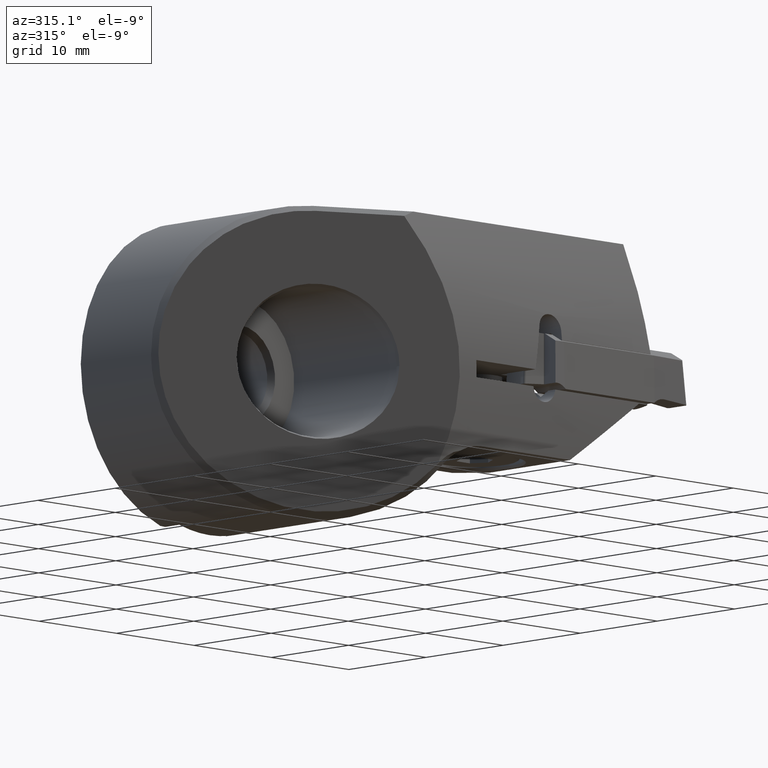
[diagram: clean part render]
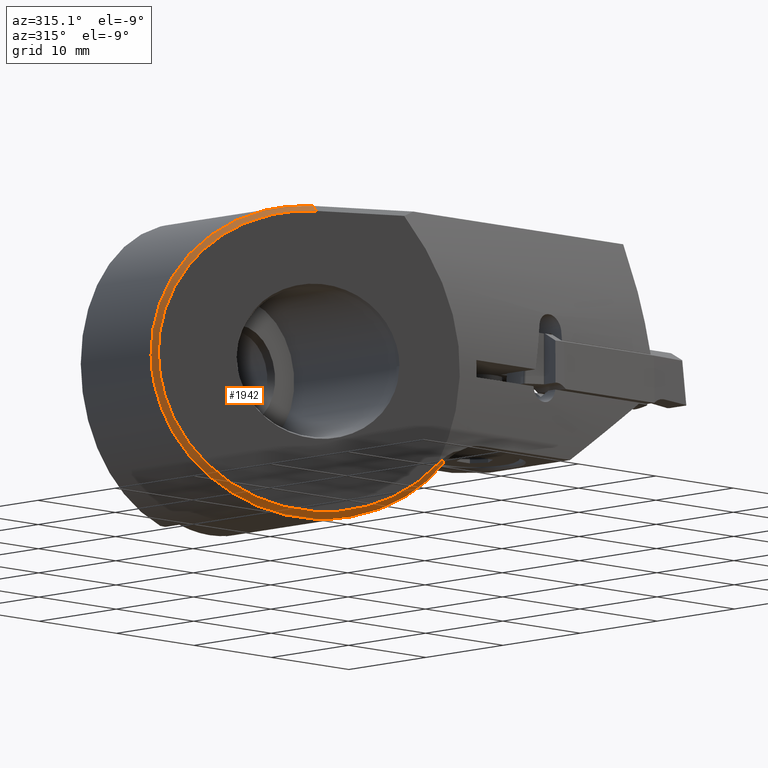
[diagram: same view with one face highlighted and labeled with its STEP entity id]
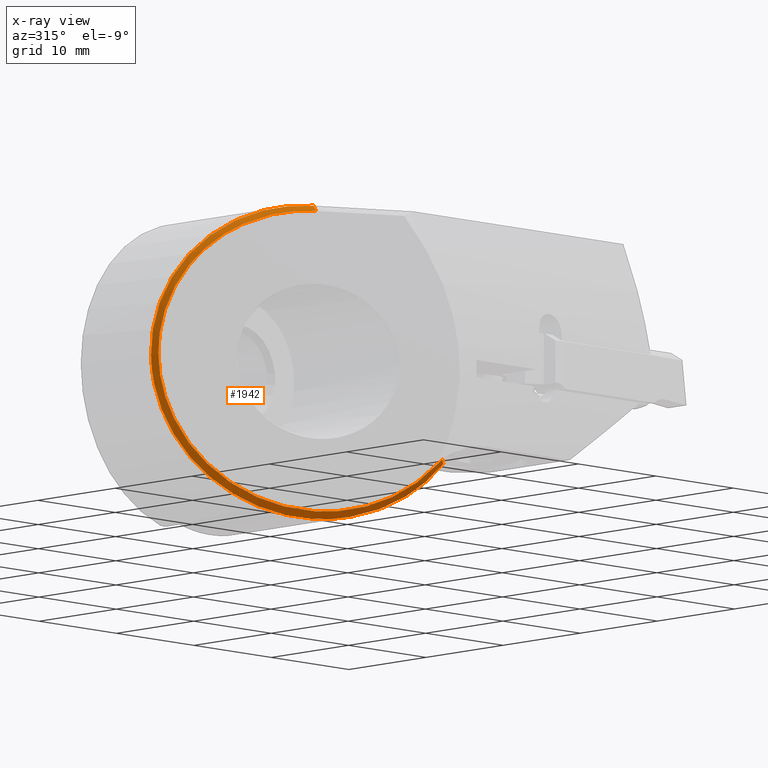
[diagram: x-ray of the same camera — body ghosted, the highlighted face saturated]
A machine part, auxiliary view. The second image highlights one B-rep face of the part: STEP entity #1942.
The next image is the same camera in x-ray: the body ghosted, the highlighted face saturated — about 0% of this face is hidden behind the body in this view.
In plain terms, the highlighted face is a freeform B-spline surface patch.
Its self-contained STEP definition (entity closure, byte-faithful):
#872=EDGE_CURVE('Kante135',#2162,#1180,#2355,.F.);
#874=EDGE_CURVE('NONE',#1072,#2162,#2357,.T.);
#1072=VERTEX_POINT('NONE',#2576);
#1180=VERTEX_POINT('NONE',#2695);
#1270=EDGE_CURVE('NONE',#1180,#1870,#2790,.T.);
#1566=VERTEX_POINT('',#3114);
#1568=EDGE_CURVE('NONE',#1604,#2028,#3116,.T.);
#1604=VERTEX_POINT('NONE',#3154);
#1870=VERTEX_POINT('NONE',#3447);
#1942=ADVANCED_FACE('NONE',(#3523),#3524,.T.);
#1946=EDGE_CURVE('NONE',#2028,#1566,#3528,.T.);
#2028=VERTEX_POINT('NONE',#3623);
#2108=EDGE_CURVE('NONE',#1604,#1870,#3711,.T.);
#2162=VERTEX_POINT('NONE',#3771);
#2190=EDGE_CURVE('NONE',#1566,#1072,#3801,.T.);
#2355=B_SPLINE_CURVE_WITH_KNOTS('',3,(#4066,#4067,#4068,#4069,#4070,#4071,#4072,#4073,#4074,#4075,#4076,#4077,#4078,#4079,#4080,#4081,#4082,#4083,#4084,#4085,#4086,#4087,#4088,#4089,#4090,#4091,#4092,#4093),.UNSPECIFIED.,.F.,.F.,(4,2,2,2,2,2,2,2,2,2,2,2,2,4),(-116.030400022499,-110.917216512603,-106.274779054729,-96.7883374040652,-82.3474308451043,-69.2807316693358,-56.3449539127448,-46.5530486270223,-38.9457003623519,-29.9039560426425,-19.7350639219626,-10.8274703385523,-2.49017190615868,-0.0),.UNSPECIFIED.);
#2357=B_SPLINE_CURVE_WITH_KNOTS('',1,(#4096,#4097),.UNSPECIFIED.,.F.,.F.,(2,2),(1.26287869051112E-015,1.0),.UNSPECIFIED.);
#2576=CARTESIAN_POINT('',(0.0,-15.6030548013484,14.5));
#2695=CARTESIAN_POINT('',(10.3681195455965,-21.275833966564,-8.91898884692533));
#2790=B_SPLINE_CURVE_WITH_KNOTS('',3,(#4889,#4890,#4891,#4892),.UNSPECIFIED.,.F.,.F.,(4,4),(-2.17256673236491,-0.0),.UNSPECIFIED.);
#3114=CARTESIAN_POINT('',(2.0220364360623E-012,-15.604408145536,-14.5));
#3116=B_SPLINE_CURVE_WITH_KNOTS('',3,(#5547,#5548,#5549,#5550,#5551,#5552,#5553,#5554,#5555,#5556,#5557,#5558,#5559,#5560,#5561,#5562,#5563,#5564),.UNSPECIFIED.,.F.,.F.,(4,2,2,2,2,2,2,2,4),(-16.8226115330703,-16.3657095577305,-16.1414881846463,-15.2805474976638,-13.0962285014808,-12.1639126649888,-5.76052745261957,-2.31666714743119,-0.0),.UNSPECIFIED.);
#3154=CARTESIAN_POINT('',(11.6,-20.7966242975052,-8.7));
#3447=CARTESIAN_POINT('',(10.9362458107321,-21.3800676624774,-8.40605878675312));
#3523=FACE_OUTER_BOUND('',#6223,.T.);
#3524=B_SPLINE_SURFACE_WITH_KNOTS('',1,3,((#6224,#6225,#6226,#6227,#6228,#6229,#6230,#6231,#6232,#6233,#6234,#6235,#6236,#6237,#6238,#6239,#6240,#6241,#6242,#6243,#6244,#6245,#6246,#6247),(#6248,#6249,#6250,#6251,#6252,#6253,#6254,#6255,#6256,#6257,#6258,#6259,#6260,#6261,#6262,#6263,#6264,#6265,#6266,#6267,#6268,#6269,#6270,#6271),(#6272,#6273,#6274,#6275,#6276,#6277,#6278,#6279,#6280,#6281,#6282,#6283,#6284,#6285,#6286,#6287,#6288,#6289,#6290,#6291,#6292,#6293,#6294,#6295),(#6296,#6297,#6298,#6299,#6300,#6301,#6302,#6303,#6304,#6305,#6306,#6307,#6308,#6309,#6310,#6311,#6312,#6313,#6314,#6315,#6316,#6317,#6318,#6319)),.UNSPECIFIED.,.F.,.F.,.F.,(2,1,1,2),(4,3,2,2,2,2,2,2,2,3,4),(-0.0943289211478654,0.0,1.0,1.09432892114787),(3.74441906283175,3.78510780115989,4.11569090194988,4.64973243509625,5.18377396824262,5.717815501389,6.25185703453537,6.78589856768174,7.31994010082811,7.85398163397448,7.89467037230263),.UNSPECIFIED.);
#3528=B_SPLINE_CURVE_WITH_KNOTS('',3,(#6325,#6326,#6327,#6328,#6329,#6330,#6331,#6332,#6333,#6334,#6335,#6336,#6337,#6338,#6339,#6340,#6341,#6342,#6343,#6344,#6345,#6346,#6347,#6348,#6349,#6350,#6351,#6352,#6353,#6354,#6355,#6356,#6357,#6358,#6359,#6360,#6361,#6362,#6363,#6364,#6365,#6366,#6367,#6368,#6369,#6370,#6371,#6372),.UNSPECIFIED.,.F.,.F.,(4,2,2,2,2,2,2,2,2,2,2,2,2,2,2,2,2,2,2,2,2,2,2,4),(-58.2093167633908,-51.4081922784438,-46.5175436793658,-42.8232857819263,-39.8183016093755,-37.8031593876951,-35.8202420607018,-32.4623812035567,-30.0169972522585,-25.4438803888766,-23.8315215148485,-21.6974637731535,-19.5591689922299,-13.9007494236515,-10.772351286531,-5.79381983395232,-3.44835845637588,-0.675065751992177,-0.596059739823152,-0.511012172929416,-0.366535770711731,-0.270601403314154,-0.128024422953283,-0.0),.UNSPECIFIED.);
#3623=CARTESIAN_POINT('',(0.000505521428412538,-15.604635026187,-14.4999999911879));
#3711=B_SPLINE_CURVE_WITH_KNOTS('',1,(#6694,#6695),.UNSPECIFIED.,.F.,.F.,(2,2),(1.94289029309402E-016,0.84808620233216),.UNSPECIFIED.);
#3771=CARTESIAN_POINT('',(-0.320990095308131,-16.2914202821517,13.9225566363498));
#3801=B_SPLINE_CURVE_WITH_KNOTS('',3,(#6855,#6856,#6857,#6858,#6859,#6860,#6861,#6862,#6863,#6864,#6865,#6866,#6867,#6868,#6869,#6870,#6871,#6872,#6873,#6874,#6875,#6876,#6877,#6878,#6879,#6880,#6881,#6882,#6883,#6884,#6885,#6886,#6887,#6888,#6889,#6890,#6891,#6892,#6893,#6894,#6895,#6896,#6897,#6898,#6899,#6900,#6901,#6902),.UNSPECIFIED.,.F.,.F.,(4,2,2,2,2,2,2,2,2,2,2,2,2,2,2,2,2,2,2,2,2,2,2,4),(-58.2093167633908,-51.4081922784438,-46.5175436793658,-42.8232857819263,-39.8183016093755,-37.8031593876951,-35.8202420607018,-32.4623812035567,-30.0169972522585,-25.4438803888766,-23.8315215148485,-21.6974637731535,-19.5591689922299,-13.9007494236515,-10.772351286531,-5.79381983395232,-3.44835845637588,-0.675065751992177,-0.596059739823152,-0.511012172929416,-0.366535770711731,-0.270601403314154,-0.128024422953283,-0.0),.UNSPECIFIED.);
#4066=CARTESIAN_POINT('',(11.1571995309385,-21.6437880066258,-7.90047202415697));
#4067=CARTESIAN_POINT('',(10.6958532469192,-21.4286587013262,-8.51401166438202));
#4068=CARTESIAN_POINT('',(10.4816317504374,-21.3287655769753,-8.80596374831932));
#4069=CARTESIAN_POINT('',(9.63837088701321,-20.9355465785382,-9.7449395658066));
#4070=CARTESIAN_POINT('',(9.21100337529718,-20.7362618349784,-10.1633225690569));
#4071=CARTESIAN_POINT('',(7.84369482401081,-20.0986753864527,-11.3421723877848));
#4072=CARTESIAN_POINT('',(6.84367494178676,-19.6323584570644,-11.9957102414185));
#4073=CARTESIAN_POINT('',(4.1564017512295,-18.3792623887529,-13.3018722462331));
#4074=CARTESIAN_POINT('',(2.22367965879333,-17.4780192759646,-13.8532318401777));
#4075=CARTESIAN_POINT('',(-1.82372132166758,-15.5906852031516,-13.9729497639294));
#4076=CARTESIAN_POINT('',(-3.76805199759419,-14.6840289189813,-13.625840207418));
#4077=CARTESIAN_POINT('',(-7.35711951430409,-13.0104192503041,-12.1688274695203));
#4078=CARTESIAN_POINT('',(-8.88945021762651,-12.2958817085188,-11.1085877056619));
#4079=CARTESIAN_POINT('',(-11.0768947601502,-11.2758595665507,-8.93626407828145));
#4080=CARTESIAN_POINT('',(-12.182289190123,-10.7604056785725,-7.57844512770014));
#4081=CARTESIAN_POINT('',(-13.6799799334473,-10.0620210154125,-4.22562686409115));
#4082=CARTESIAN_POINT('',(-14.0876942637387,-9.87190070085809,-2.63458404623106));
#4083=CARTESIAN_POINT('',(-14.3485329429124,-9.75026962721634,0.927982476373015));
#4084=CARTESIAN_POINT('',(-14.0625847392909,-9.88360946440073,2.6296565173709));
#4085=CARTESIAN_POINT('',(-13.2031259779433,-10.2843816666855,5.51158411287736));
#4086=CARTESIAN_POINT('',(-12.4501704523595,-10.6354905945154,7.09301055555552));
#4087=CARTESIAN_POINT('',(-10.2548442136885,-11.6591880317563,9.88994426006282));
#4088=CARTESIAN_POINT('',(-8.83862127646613,-12.3195836330379,11.216214033103));
#4089=CARTESIAN_POINT('',(-5.2343993764796,-14.0002599066915,13.1756856608274));
#4090=CARTESIAN_POINT('',(-3.30749997314048,-14.8987878549629,13.7366199249059));
#4091=CARTESIAN_POINT('',(-0.78747466689558,-16.0738949540093,13.9274721682675));
#4092=CARTESIAN_POINT('',(-0.506614313633376,-16.2048622876076,13.9228018035408));
#4093=CARTESIAN_POINT('',(0.245672543939276,-16.5556594104231,13.9218082044439));
#4096=CARTESIAN_POINT('',(-2.93411128726717E-014,-15.6030548013484,14.5));
#4097=CARTESIAN_POINT('',(-0.32099009530813,-16.2914202821517,13.9225566363498));
#4889=CARTESIAN_POINT('',(10.0366866190972,-21.2190206056165,-9.18601582510914));
#4890=CARTESIAN_POINT('',(10.5975200563494,-21.3126716369851,-8.75253626135632));
#4891=CARTESIAN_POINT('',(10.8513525242242,-21.3674330343232,-8.48503899453891));
#4892=CARTESIAN_POINT('',(11.3697356848344,-21.4602944290502,-7.98794218437629));
#5547=CARTESIAN_POINT('',(11.942435241094,-20.9658529491997,-8.2236391282859));
#5548=CARTESIAN_POINT('',(11.8807104279659,-20.932490750503,-8.31327640103731));
#5549=CARTESIAN_POINT('',(11.8178080175592,-20.9001384250512,-8.40246330993496));
#5550=CARTESIAN_POINT('',(11.7222738988894,-20.8534279961488,-8.53470437715876));
#5551=CARTESIAN_POINT('',(11.6905424011522,-20.8382977674234,-8.57811852801148));
#5552=CARTESIAN_POINT('',(11.5356034726172,-20.7662697562594,-8.7876387502302));
#5553=CARTESIAN_POINT('',(11.392697501775,-20.7032123876766,-8.97401259456548));
#5554=CARTESIAN_POINT('',(10.7729521452515,-20.4245245063214,-9.73065605844852));
#5555=CARTESIAN_POINT('',(10.2921990388823,-20.2092350849006,-10.2372204648539));
#5556=CARTESIAN_POINT('',(9.56238604139321,-19.8831774912617,-10.9040463243755));
#5557=CARTESIAN_POINT('',(9.33858284391014,-19.783264589473,-11.0962785119705));
#5558=CARTESIAN_POINT('',(7.53790704453389,-18.9792381021736,-12.5503649904025));
#5559=CARTESIAN_POINT('',(5.74325165423851,-18.1692293344654,-13.4575590248636));
#5560=CARTESIAN_POINT('',(2.83783079171672,-16.8715814238058,-14.2585999925593));
#5561=CARTESIAN_POINT('',(1.79696423077716,-16.4090145155175,-14.4263353828436));
#5562=CARTESIAN_POINT('',(0.0463856230955091,-15.6257227520834,-14.5170526969778));
#5563=CARTESIAN_POINT('',(-0.659272458276805,-15.3083071345789,-14.5021444546651));
#5564=CARTESIAN_POINT('',(-1.36102501184736,-14.9928813116298,-14.4359831988378));
#6223=EDGE_LOOP('',(#8300,#8301,#8302,#8303,#8304,#8305,#8306));
#6224=CARTESIAN_POINT('',(12.0297691060031,-20.890453055949,-8.25958175271068));
#6225=CARTESIAN_POINT('',(11.9111215630298,-20.8375455180845,-8.41728576723361));
#6226=CARTESIAN_POINT('',(11.7924740200565,-20.7846379802199,-8.57498978175654));
#6227=CARTESIAN_POINT('',(11.6738264770832,-20.7317304423553,-8.73269379627947));
#6228=CARTESIAN_POINT('',(10.7098528011016,-20.3018734686301,-10.0139889228958));
#6229=CARTESIAN_POINT('',(9.53571749912492,-19.7781364116497,-11.1379090950783));
#6230=CARTESIAN_POINT('',(6.06481334518979,-18.2298982114774,-13.4956955111872));
#6231=CARTESIAN_POINT('',(3.5282120376655,-17.0984169407694,-14.3636300160763));
#6232=CARTESIAN_POINT('',(-1.64587708584017,-14.7928486591344,-14.6890567112657));
#6233=CARTESIAN_POINT('',(-4.27017225545742,-13.619854604682,-14.144098696443));
#6234=CARTESIAN_POINT('',(-8.88824119044158,-11.5599098700736,-11.7902251796247));
#6235=CARTESIAN_POINT('',(-10.8709402328514,-10.6755033118295,-9.98563142195641));
#6236=CARTESIAN_POINT('',(-13.6478154560749,-9.43684499489991,-5.60884566160886));
#6237=CARTESIAN_POINT('',(-14.4358695348209,-9.08532407284991,-3.04630369417316));
#6238=CARTESIAN_POINT('',(-14.5982289142647,-9.01290173496837,2.13452007364156));
#6239=CARTESIAN_POINT('',(-13.9721762340781,-9.29216000077443,4.74137801845014));
#6240=CARTESIAN_POINT('',(-11.4748048434302,-10.4061422991491,9.28345098013851));
#6241=CARTESIAN_POINT('',(-9.60899210952974,-11.2384103252254,11.2086513617369));
#6242=CARTESIAN_POINT('',(-5.14737415193406,-13.2285682351529,13.8470689166217));
#6243=CARTESIAN_POINT('',(-2.56140223910316,-14.382071853312,14.5578926279632));
#6244=CARTESIAN_POINT('',(0.0302786493895346,-15.5381220281888,14.5544696095171));
#6245=CARTESIAN_POINT('',(0.227739369121669,-15.6262017376126,14.5542088090115));
#6246=CARTESIAN_POINT('',(0.425200088853804,-15.7142814470364,14.553948008506));
#6247=CARTESIAN_POINT('',(0.622660808585939,-15.8023611564602,14.5536872080004));
#6248=CARTESIAN_POINT('',(11.9546207744999,-20.9553325408912,-8.22865413650841));
#6249=CARTESIAN_POINT('',(11.8364138496666,-20.9024297930959,-8.38576942433894));
#6250=CARTESIAN_POINT('',(11.7182069248333,-20.8495270453005,-8.54288471216947));
#6251=CARTESIAN_POINT('',(11.6,-20.7966242975052,-8.7));
#6252=CARTESIAN_POINT('',(10.6396062067324,-20.366806241574,-9.97651190886396));
#6253=CARTESIAN_POINT('',(9.46986506620835,-19.8430691845261,-11.09622584797));
#6254=CARTESIAN_POINT('',(6.01195065508342,-18.2948309850945,-13.4451883272058));
#6255=CARTESIAN_POINT('',(3.48484248871078,-17.1633497128322,-14.3098746174204));
#6256=CARTESIAN_POINT('',(-1.66980899717647,-14.8576093165284,-14.6340118940591));
#6257=CARTESIAN_POINT('',(-4.28435661446376,-13.6847873771578,-14.091164885423));
#6258=CARTESIAN_POINT('',(-8.8851425799622,-11.6248426439171,-11.7461006619993));
#6259=CARTESIAN_POINT('',(-10.860421439258,-10.7404360852549,-9.94826053549336));
#6260=CARTESIAN_POINT('',(-13.6269043021542,-9.50177776779368,-5.58785474581083));
#6261=CARTESIAN_POINT('',(-14.4120091145282,-9.15025684605994,-3.03490300922168));
#6262=CARTESIAN_POINT('',(-14.5737608697094,-9.07783450807754,2.12653170800551));
#6263=CARTESIAN_POINT('',(-13.9500511710671,-9.35709277360524,4.7236335705409));
#6264=CARTESIAN_POINT('',(-11.4620261068516,-10.4710750726375,9.24870798057676));
#6265=CARTESIAN_POINT('',(-9.60319611338308,-11.3033430989595,11.1667033644066));
#6266=CARTESIAN_POINT('',(-5.1582756123221,-13.293501007738,13.7952467295105));
#6267=CARTESIAN_POINT('',(-2.5819816105543,-14.4470046264716,14.5034102079155));
#6268=CARTESIAN_POINT('',(-2.89469603443533E-014,-15.6030548013484,14.5));
#6269=CARTESIAN_POINT('',(0.196721729677,-15.6911345107722,14.4997401755315));
#6270=CARTESIAN_POINT('',(0.393443459354028,-15.779214220196,14.499480351063));
#6271=CARTESIAN_POINT('',(0.590165189031057,-15.8672939296198,14.4992205265944));
#6272=CARTESIAN_POINT('',(11.1579580904712,-21.6431331025075,-7.90078421256654));
#6273=CARTESIAN_POINT('',(11.0444222477901,-21.5902811352063,-8.05165828948069));
#6274=CARTESIAN_POINT('',(10.9308864051091,-21.537429167905,-8.20253236639484));
#6275=CARTESIAN_POINT('',(10.817350562428,-21.4845772006037,-8.35340644330898));
#6276=CARTESIAN_POINT('',(9.89490783093757,-21.0551717200898,-9.57921049190991));
#6277=CARTESIAN_POINT('',(8.77175008603862,-20.5314346623273,-10.6543333021725));
#6278=CARTESIAN_POINT('',(5.45154256959804,-18.9831964707473,-12.909751439274));
#6279=CARTESIAN_POINT('',(3.02507311546904,-17.8517151820078,-13.7400027477782));
#6280=CARTESIAN_POINT('',(-1.92351603681056,-15.544150163237,-14.0504706371809));
#6281=CARTESIAN_POINT('',(-4.43472787742035,-14.3731528507112,-13.5300028327268));
#6282=CARTESIAN_POINT('',(-8.85229358262746,-12.3132081319702,-11.2783277129557));
#6283=CARTESIAN_POINT('',(-10.7489095777264,-11.4288015688763,-9.55208419839238));
#6284=CARTESIAN_POINT('',(-13.4052209237557,-10.1901432457788,-5.36532579559502));
#6285=CARTESIAN_POINT('',(-14.1590599659277,-9.83862232739779,-2.91404203877115));
#6286=CARTESIAN_POINT('',(-14.3143701732234,-9.76619998834617,2.04184542580446));
#6287=CARTESIAN_POINT('',(-13.7154988965181,-10.0454582509229,4.53552108400648));
#6288=CARTESIAN_POINT('',(-11.3265561319685,-11.1594405569264,8.88039040481137));
#6289=CARTESIAN_POINT('',(-9.54175158421727,-11.9917085858526,10.7220041478795));
#6290=CARTESIAN_POINT('',(-5.27384420205453,-13.9818664824514,13.2458692270376));
#6291=CARTESIAN_POINT('',(-2.80014769578781,-15.1353701072748,13.9258310372357));
#6292=CARTESIAN_POINT('',(-0.320990095308129,-16.2914202821517,13.9225566363498));
#6293=CARTESIAN_POINT('',(-0.132102548892328,-16.3794999915755,13.9223071590478));
#6294=CARTESIAN_POINT('',(0.0567849975234733,-16.4675797009993,13.9220576817458));
#6295=CARTESIAN_POINT('',(0.245672543939274,-16.5556594104231,13.9218082044439));
#6296=CARTESIAN_POINT('',(11.082809758968,-21.7080125874497,-7.86985659636427));
#6297=CARTESIAN_POINT('',(10.969714534427,-21.6551654102176,-8.02014194658602));
#6298=CARTESIAN_POINT('',(10.8566193098859,-21.6023182329856,-8.17042729680777));
#6299=CARTESIAN_POINT('',(10.7435240853448,-21.5494710557536,-8.32071264702952));
#6300=CARTESIAN_POINT('',(9.82466123656828,-21.1201044930337,-9.54173347787812));
#6301=CARTESIAN_POINT('',(8.70589765312204,-20.5963674352038,-10.6126500550642));
#6302=CARTESIAN_POINT('',(5.39867987949166,-19.0481292443644,-12.8592442552927));
#6303=CARTESIAN_POINT('',(2.98170356651432,-17.9166479540705,-13.6862473491224));
#6304=CARTESIAN_POINT('',(-1.94744794814686,-15.608910820631,-13.9954258199743));
#6305=CARTESIAN_POINT('',(-4.44891223642669,-14.4380856231869,-13.4770690217068));
#6306=CARTESIAN_POINT('',(-8.84919497214809,-12.3781409058137,-11.2342031953303));
#6307=CARTESIAN_POINT('',(-10.738390784133,-11.4937343423017,-9.51471331192933));
#6308=CARTESIAN_POINT('',(-13.384309769835,-10.2550760186726,-5.34433487979699));
#6309=CARTESIAN_POINT('',(-14.1351995456349,-9.90355510060782,-2.90264135381967));
#6310=CARTESIAN_POINT('',(-14.289902128668,-9.83113276145534,2.03385706016841));
#6311=CARTESIAN_POINT('',(-13.6933738335071,-10.1103910237537,4.51777663609724));
#6312=CARTESIAN_POINT('',(-11.3137773953898,-11.2243733304147,8.84564740524963));
#6313=CARTESIAN_POINT('',(-9.53595558807062,-12.0566413595867,10.6800561505492));
#6314=CARTESIAN_POINT('',(-5.28474566244257,-14.0467992550365,13.1940470399264));
#6315=CARTESIAN_POINT('',(-2.82072706723894,-15.2003028804344,13.871348617188));
#6316=CARTESIAN_POINT('',(-0.351268744697692,-16.3563530553113,13.8680870268327));
#6317=CARTESIAN_POINT('',(-0.163120188336998,-16.4444327647351,13.8678385255677));
#6318=CARTESIAN_POINT('',(0.0250283680236972,-16.5325124741589,13.8675900243028));
#6319=CARTESIAN_POINT('',(0.213176924384392,-16.6205921835827,13.8673415230379));
#6325=CARTESIAN_POINT('',(1.67719598767409,-16.354635026187,-14.4026738357476));
#6326=CARTESIAN_POINT('',(-0.0989334627201546,-15.5624684757517,-14.6095046799203));
#6327=CARTESIAN_POINT('',(-1.89965843507862,-14.749185916361,-14.4865299768585));
#6328=CARTESIAN_POINT('',(-4.88507623606227,-13.4131278227231,-13.7131388459772));
#6329=CARTESIAN_POINT('',(-6.09275365094949,-12.8763646387411,-13.2225585382751));
#6330=CARTESIAN_POINT('',(-8.08154405008721,-11.9827057120967,-12.0794468882335));
#6331=CARTESIAN_POINT('',(-8.89222313654262,-11.6167807230519,-11.4973030711304));
#6332=CARTESIAN_POINT('',(-10.2530407498938,-11.006845884922,-10.2855805137816));
#6333=CARTESIAN_POINT('',(-10.8209010190461,-10.7540363342831,-9.68752340571752));
#6334=CARTESIAN_POINT('',(-11.6858732427953,-10.3697579602842,-8.6023639994296));
#6335=CARTESIAN_POINT('',(-12.0089953561683,-10.2263475417925,-8.14551876614651));
#6336=CARTESIAN_POINT('',(-12.5983384241547,-9.96209679726653,-7.19981293084731));
#6337=CARTESIAN_POINT('',(-12.8648402849545,-9.84133573677495,-6.71243690931153));
#6338=CARTESIAN_POINT('',(-13.5078957420575,-9.54972857818963,-5.35521761600483));
#6339=CARTESIAN_POINT('',(-13.8300800871951,-9.40382769555992,-4.46024971608907));
#6340=CARTESIAN_POINT('',(-14.232820013377,-9.22544428635737,-2.85693563545498));
#6341=CARTESIAN_POINT('',(-14.353911833978,-9.17337382168482,-2.1691242304792));
#6342=CARTESIAN_POINT('',(-14.5579577413282,-9.08648738063254,-0.170678810629184));
#6343=CARTESIAN_POINT('',(-14.5134992034277,-9.10112280778973,1.15806627795226));
#6344=CARTESIAN_POINT('',(-14.2119992278934,-9.23345556933772,2.91281235542671));
#6345=CARTESIAN_POINT('',(-14.1117105220711,-9.27817661315924,3.36499810400139));
#6346=CARTESIAN_POINT('',(-13.8294819796982,-9.40542331291594,4.4010898740313));
#6347=CARTESIAN_POINT('',(-13.6322953215103,-9.49522407464506,4.9778307056938));
#6348=CARTESIAN_POINT('',(-13.1682246927913,-9.70602776496915,6.10062263467577));
#6349=CARTESIAN_POINT('',(-12.9015236165841,-9.82684997203668,6.64547733732735));
#6350=CARTESIAN_POINT('',(-11.8174677573259,-10.3109262673264,8.55161601714895));
#6351=CARTESIAN_POINT('',(-10.8241242739913,-10.7498678199251,9.77119097758103));
#6352=CARTESIAN_POINT('',(-9.03649825269018,-11.5537791078543,11.3719651670705));
#6353=CARTESIAN_POINT('',(-8.35586693225003,-11.8611210451854,11.8801563961088));
#6354=CARTESIAN_POINT('',(-6.50183382071631,-12.6927657360961,13.0296122397008));
#6355=CARTESIAN_POINT('',(-5.28167942719437,-13.2350477491562,13.5680086577868));
#6356=CARTESIAN_POINT('',(-3.41864104309071,-14.0699605132372,14.1049076150147));
#6357=CARTESIAN_POINT('',(-2.8131184339204,-14.3419638107231,14.2379100800808));
#6358=CARTESIAN_POINT('',(-1.48039783754022,-14.9405864859976,14.4427178568538));
#6359=CARTESIAN_POINT('',(-0.75126051614236,-15.2680674981164,14.4989104196929));
#6360=CARTESIAN_POINT('',(-0.000538432290819551,-15.6028154109183,14.5000149004745));
#6361=CARTESIAN_POINT('',(0.0218932464407739,-15.6128107091101,14.5000033541928));
#6362=CARTESIAN_POINT('',(0.071753602936308,-15.6352676841161,14.4998455012623));
#6363=CARTESIAN_POINT('',(0.0975641234640777,-15.6469924128721,14.4996946696508));
#6364=CARTESIAN_POINT('',(0.167118294738842,-15.6788567614645,14.4991030221357));
#6365=CARTESIAN_POINT('',(0.210788582890535,-15.6991507107724,14.4985332375112));
#6366=CARTESIAN_POINT('',(0.283269375923634,-15.7333097793626,14.4972616468652));
#6367=CARTESIAN_POINT('',(0.312142013975757,-15.7470436241585,14.4966685320485));
#6368=CARTESIAN_POINT('',(0.383798968012176,-15.7814426032534,14.4949830701515));
#6369=CARTESIAN_POINT('',(0.426520455661192,-15.8022304730324,14.4937882403328));
#6370=CARTESIAN_POINT('',(0.507385553026368,-15.8421066228904,14.4911705917735));
#6371=CARTESIAN_POINT('',(0.545549991148102,-15.8611511406932,14.4897835347823));
#6372=CARTESIAN_POINT('',(0.583620004584577,-15.8803725224509,14.4882499871533));
#6694=CARTESIAN_POINT('',(11.6,-20.7966242975052,-8.7));
#6695=CARTESIAN_POINT('',(10.9362458107321,-21.3800676624774,-8.40605878675312));
#6855=CARTESIAN_POINT('',(1.67719598767409,-16.354635026187,-14.4026738357476));
#6856=CARTESIAN_POINT('',(-0.0989334627201546,-15.5624684757517,-14.6095046799203));
#6857=CARTESIAN_POINT('',(-1.89965843507862,-14.749185916361,-14.4865299768585));
#6858=CARTESIAN_POINT('',(-4.88507623606227,-13.4131278227231,-13.7131388459772));
#6859=CARTESIAN_POINT('',(-6.09275365094949,-12.8763646387411,-13.2225585382751));
#6860=CARTESIAN_POINT('',(-8.08154405008721,-11.9827057120967,-12.0794468882335));
#6861=CARTESIAN_POINT('',(-8.89222313654262,-11.6167807230519,-11.4973030711304));
#6862=CARTESIAN_POINT('',(-10.2530407498938,-11.006845884922,-10.2855805137816));
#6863=CARTESIAN_POINT('',(-10.8209010190461,-10.7540363342831,-9.68752340571752));
#6864=CARTESIAN_POINT('',(-11.6858732427953,-10.3697579602842,-8.6023639994296));
#6865=CARTESIAN_POINT('',(-12.0089953561683,-10.2263475417925,-8.14551876614651));
#6866=CARTESIAN_POINT('',(-12.5983384241547,-9.96209679726653,-7.19981293084731));
#6867=CARTESIAN_POINT('',(-12.8648402849545,-9.84133573677495,-6.71243690931153));
#6868=CARTESIAN_POINT('',(-13.5078957420575,-9.54972857818963,-5.35521761600483));
#6869=CARTESIAN_POINT('',(-13.8300800871951,-9.40382769555992,-4.46024971608907));
#6870=CARTESIAN_POINT('',(-14.232820013377,-9.22544428635737,-2.85693563545498));
#6871=CARTESIAN_POINT('',(-14.353911833978,-9.17337382168482,-2.1691242304792));
#6872=CARTESIAN_POINT('',(-14.5579577413282,-9.08648738063254,-0.170678810629184));
#6873=CARTESIAN_POINT('',(-14.5134992034277,-9.10112280778973,1.15806627795226));
#6874=CARTESIAN_POINT('',(-14.2119992278934,-9.23345556933772,2.91281235542671));
#6875=CARTESIAN_POINT('',(-14.1117105220711,-9.27817661315924,3.36499810400139));
#6876=CARTESIAN_POINT('',(-13.8294819796982,-9.40542331291594,4.4010898740313));
#6877=CARTESIAN_POINT('',(-13.6322953215103,-9.49522407464506,4.9778307056938));
#6878=CARTESIAN_POINT('',(-13.1682246927913,-9.70602776496915,6.10062263467577));
#6879=CARTESIAN_POINT('',(-12.9015236165841,-9.82684997203668,6.64547733732735));
#6880=CARTESIAN_POINT('',(-11.8174677573259,-10.3109262673264,8.55161601714895));
#6881=CARTESIAN_POINT('',(-10.8241242739913,-10.7498678199251,9.77119097758103));
#6882=CARTESIAN_POINT('',(-9.03649825269018,-11.5537791078543,11.3719651670705));
#6883=CARTESIAN_POINT('',(-8.35586693225003,-11.8611210451854,11.8801563961088));
#6884=CARTESIAN_POINT('',(-6.50183382071631,-12.6927657360961,13.0296122397008));
#6885=CARTESIAN_POINT('',(-5.28167942719437,-13.2350477491562,13.5680086577868));
#6886=CARTESIAN_POINT('',(-3.41864104309071,-14.0699605132372,14.1049076150147));
#6887=CARTESIAN_POINT('',(-2.8131184339204,-14.3419638107231,14.2379100800808));
#6888=CARTESIAN_POINT('',(-1.48039783754022,-14.9405864859976,14.4427178568538));
#6889=CARTESIAN_POINT('',(-0.75126051614236,-15.2680674981164,14.4989104196929));
#6890=CARTESIAN_POINT('',(-0.000538432290819551,-15.6028154109183,14.5000149004745));
#6891=CARTESIAN_POINT('',(0.0218932464407739,-15.6128107091101,14.5000033541928));
#6892=CARTESIAN_POINT('',(0.071753602936308,-15.6352676841161,14.4998455012623));
#6893=CARTESIAN_POINT('',(0.0975641234640777,-15.6469924128721,14.4996946696508));
#6894=CARTESIAN_POINT('',(0.167118294738842,-15.6788567614645,14.4991030221357));
#6895=CARTESIAN_POINT('',(0.210788582890535,-15.6991507107724,14.4985332375112));
#6896=CARTESIAN_POINT('',(0.283269375923634,-15.7333097793626,14.4972616468652));
#6897=CARTESIAN_POINT('',(0.312142013975757,-15.7470436241585,14.4966685320485));
#6898=CARTESIAN_POINT('',(0.383798968012176,-15.7814426032534,14.4949830701515));
#6899=CARTESIAN_POINT('',(0.426520455661192,-15.8022304730324,14.4937882403328));
#6900=CARTESIAN_POINT('',(0.507385553026368,-15.8421066228904,14.4911705917735));
#6901=CARTESIAN_POINT('',(0.545549991148102,-15.8611511406932,14.4897835347823));
#6902=CARTESIAN_POINT('',(0.583620004584577,-15.8803725224509,14.4882499871533));
#8300=ORIENTED_EDGE('',*,*,#1270,.F.);
#8301=ORIENTED_EDGE('',*,*,#872,.F.);
#8302=ORIENTED_EDGE('',*,*,#874,.F.);
#8303=ORIENTED_EDGE('',*,*,#2190,.F.);
#8304=ORIENTED_EDGE('',*,*,#1946,.F.);
#8305=ORIENTED_EDGE('',*,*,#1568,.F.);
#8306=ORIENTED_EDGE('',*,*,#2108,.T.);